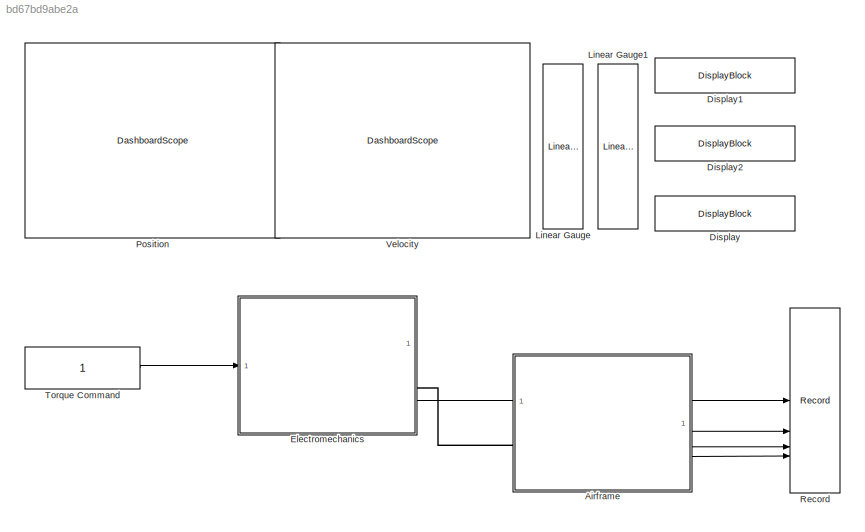
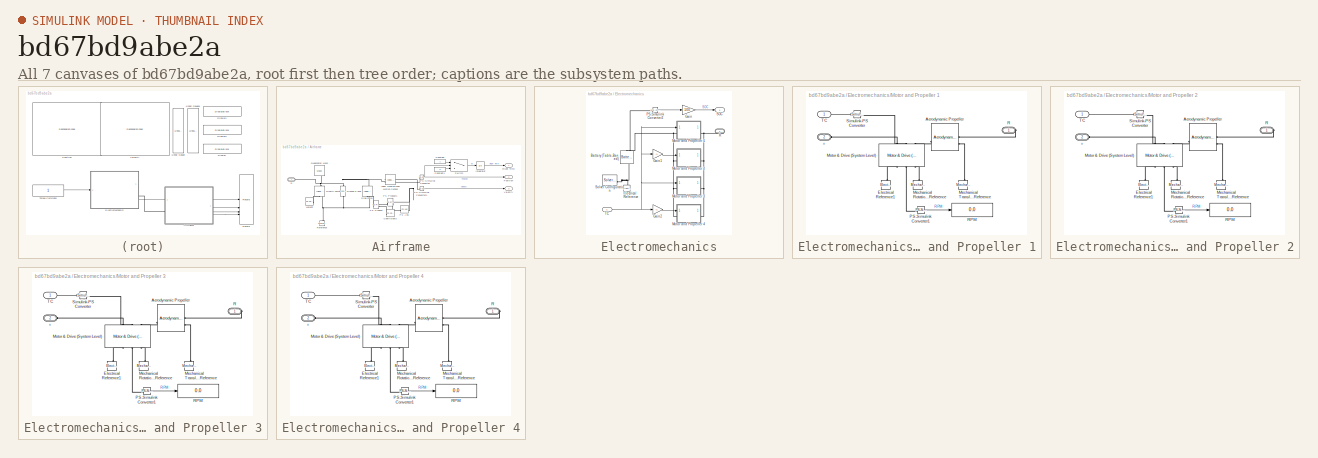
[diagram: thumbnail index - all 7 canvases of the model, root first then tree order]
MODEL slx_bd67bd9abe2a
KIND model
CONFIG AbsTol = auto
CONFIG EnableMultiTasking = off
CONFIG FixedStep = auto
CONFIG MaxStep = auto
CONFIG MinStep = auto
CONFIG RelTol = 1e-3
CONFIG SampleTimeConstraint = Unconstrained
CONFIG SolverName = VariableStepAuto
CONFIG StartTime = 0.0
CONFIG StopTime = 120
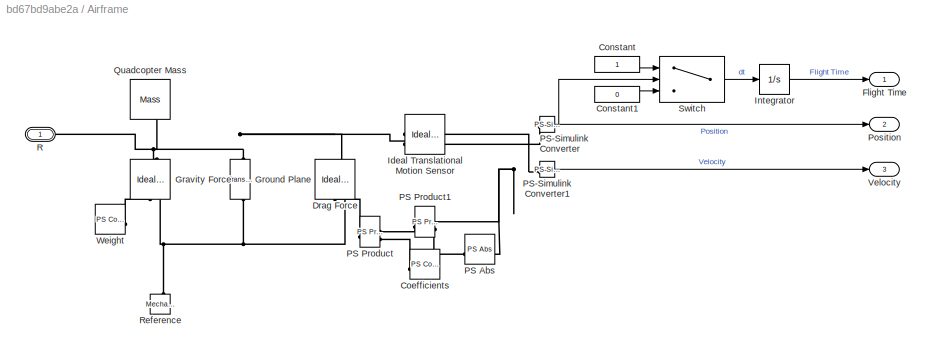
BLOCK [SubSystem] Airframe
BLOCK [Reference] Airframe/Coefficients  REF=fl_lib/Physical Signals/Sources/PS Constant
  SourceBlock = fl_lib/Physical Signals/Sources/PS Constant
  SourceType = PS Constant
BLOCK [Constant] Airframe/Constant
BLOCK [Constant] Airframe/Constant1
  Value = 0
BLOCK [Reference] Airframe/Drag Force  REF=fl_lib/Mechanical/Mechanical Sources/Ideal Force Source
  NameLocation = right
  SourceBlock = fl_lib/Mechanical/Mechanical Sources/Ideal Force Source
  SourceType = Ideal Force Source
BLOCK [Outport] Airframe/Flight Time
BLOCK [Reference] Airframe/Gravity Force  REF=fl_lib/Mechanical/Mechanical Sources/Ideal Force Source
  NameLocation = right
  SourceBlock = fl_lib/Mechanical/Mechanical Sources/Ideal Force Source
  SourceType = Ideal Force Source
BLOCK [Reference] Airframe/Ground Plane  REF=fl_lib/Mechanical/Translational
Elements/Translational Hard
Stop
  NameLocation = right
  SourceBlock = fl_lib/Mechanical/Translational\nElements/Translational Hard\nStop
  SourceType = Translational Hard\nStop
BLOCK [Reference] Airframe/Ideal Translational Motion Sensor  REF=fl_lib/Mechanical/Mechanical Sensors/Ideal Translational
Motion Sensor
  NameLocation = top
  SourceBlock = fl_lib/Mechanical/Mechanical Sensors/Ideal Translational\nMotion Sensor
  SourceType = Ideal Translational\nMotion Sensor
BLOCK [Integrator] Airframe/Integrator
BLOCK [Reference] Airframe/PS Abs  REF=fl_lib/Physical Signals/Nonlinear Operators/PS Abs
  SourceBlock = fl_lib/Physical Signals/Nonlinear Operators/PS Abs
  SourceType = PS Abs
BLOCK [Reference] Airframe/PS Product  REF=fl_lib/Physical Signals/Functions/PS Product
  SourceBlock = fl_lib/Physical Signals/Functions/PS Product
  SourceType = PS Product
BLOCK [Reference] Airframe/PS Product1  REF=fl_lib/Physical Signals/Functions/PS Product
  SourceBlock = fl_lib/Physical Signals/Functions/PS Product
  SourceType = PS Product
BLOCK [Reference] Airframe/PS-Simulink Converter  REF=nesl_utility/PS-Simulink
Converter
  SourceBlock = nesl_utility/PS-Simulink\nConverter
  SourceType = PS-Simulink\nConverter
BLOCK [Reference] Airframe/PS-Simulink Converter1  REF=nesl_utility/PS-Simulink
Converter
  SourceBlock = nesl_utility/PS-Simulink\nConverter
  SourceType = PS-Simulink\nConverter
BLOCK [Outport] Airframe/Position
  Port = 2
BLOCK [Reference] Airframe/Quadcopter Mass  REF=fl_lib/Mechanical/Translational
Elements/Mass
  NameLocation = left
  SourceBlock = fl_lib/Mechanical/Translational\nElements/Mass
  SourceType = Mass
BLOCK [PMIOPort] Airframe/R
  Side = Left
BLOCK [Reference] Airframe/Reference  REF=fl_lib/Mechanical/Translational
Elements/Mechanical
Translational
Reference
  NameLocation = right
  SourceBlock = fl_lib/Mechanical/Translational\nElements/Mechanical\nTranslational\nReference
  SourceType = Mechanical\nTranslational\nReference
BLOCK [Switch] Airframe/Switch
  Criteria = u2 > Threshold
  InputSameDT = off
  SaturateOnIntegerOverflow = off
  Threshold = 0.01
BLOCK [Outport] Airframe/Velocity
  Port = 3
BLOCK [Reference] Airframe/Weight  REF=fl_lib/Physical Signals/Sources/PS Constant
  SourceBlock = fl_lib/Physical Signals/Sources/PS Constant
  SourceType = PS Constant
BLOCK [DisplayBlock] Display
  Transparency = 1
BLOCK [DisplayBlock] Display1
  Transparency = 1
BLOCK [DisplayBlock] Display2
  Transparency = 1
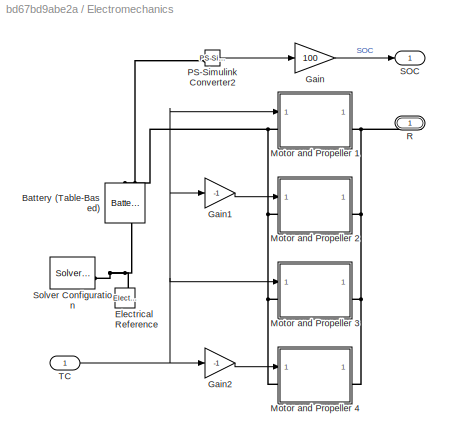
BLOCK [SubSystem] Electromechanics
BLOCK [Reference] Electromechanics/Battery (Table-Based)  REF=batteryecm_lib/Battery
(Table-Based)
  AttributesFormatString = Panasonic:\nNCA593446
  NameLocation = left
  SourceBlock = batteryecm_lib/Battery\n(Table-Based)
  SourceType = Battery\n(Table-Based)
  Tag = {'toolbox/physmod/battery/shared_library/m/batteryecm_lib_parts';'Battery__Table_Based_/Panasonic/NCA593446.xml'}
BLOCK [Reference] Electromechanics/Electrical Reference  REF=fl_lib/Electrical/Electrical Elements/Electrical Reference
  NameLocation = right
  SourceBlock = fl_lib/Electrical/Electrical Elements/Electrical Reference
  SourceType = Electrical Reference
BLOCK [Gain] Electromechanics/Gain
  Gain = 100
BLOCK [Gain] Electromechanics/Gain1
  Gain = -1
BLOCK [Gain] Electromechanics/Gain2
  Gain = -1
BLOCK [SubSystem] Electromechanics/Motor and Propeller 1
BLOCK [PMIOPort] Electromechanics/Motor and Propeller 1/+
  Port = 2
  Side = Left
BLOCK [Reference] Electromechanics/Motor and Propeller 1/Aerodynamic Propeller  REF=sdl_lib/Engines & Motors/Aerodynamic
Propeller
  SourceBlock = sdl_lib/Engines & Motors/Aerodynamic\nPropeller
  SourceType = Aerodynamic\nPropeller
BLOCK [Reference] Electromechanics/Motor and Propeller 1/Electrical Reference1  REF=fl_lib/Electrical/Electrical Elements/Electrical Reference
  NameLocation = right
  SourceBlock = fl_lib/Electrical/Electrical Elements/Electrical Reference
  SourceType = Electrical Reference
BLOCK [Reference] Electromechanics/Motor and Propeller 1/Mechanical Rotational Reference  REF=fl_lib/Mechanical/Rotational Elements/Mechanical
Rotational Reference
  NameLocation = right
  SourceBlock = fl_lib/Mechanical/Rotational Elements/Mechanical\nRotational Reference
  SourceType = Mechanical\nRotational Reference
BLOCK [Reference] Electromechanics/Motor and Propeller 1/Mechanical Translational Reference  REF=fl_lib/Mechanical/Translational
Elements/Mechanical
Translational
Reference
  NameLocation = right
  SourceBlock = fl_lib/Mechanical/Translational\nElements/Mechanical\nTranslational\nReference
  SourceType = Mechanical\nTranslational\nReference
BLOCK [Reference] Electromechanics/Motor and Propeller 1/Motor & Drive (System Level)  REF=ee_lib/Electromechanical/Motor & Drive
(System Level)
  NameLocation = right
  SourceBlock = ee_lib/Electromechanical/Motor & Drive\n(System Level)
  SourceType = Motor & Drive\n(System Level)
BLOCK [Reference] Electromechanics/Motor and Propeller 1/PS-Simulink Converter1  REF=nesl_utility/PS-Simulink
Converter
  SourceBlock = nesl_utility/PS-Simulink\nConverter
  SourceType = PS-Simulink\nConverter
BLOCK [PMIOPort] Electromechanics/Motor and Propeller 1/R
  Side = Right
BLOCK [Display] Electromechanics/Motor and Propeller 1/RPM
  Decimation = 1
BLOCK [Reference] Electromechanics/Motor and Propeller 1/Simulink-PS Converter  REF=nesl_utility/Simulink-PS
Converter
  SourceBlock = nesl_utility/Simulink-PS\nConverter
  SourceType = Simulink-PS\nConverter
BLOCK [Inport] Electromechanics/Motor and Propeller 1/TC
BLOCK [SubSystem] Electromechanics/Motor and Propeller 2
BLOCK [PMIOPort] Electromechanics/Motor and Propeller 2/+
  Port = 2
  Side = Left
BLOCK [Reference] Electromechanics/Motor and Propeller 2/Aerodynamic Propeller  REF=sdl_lib/Engines & Motors/Aerodynamic
Propeller
  SourceBlock = sdl_lib/Engines & Motors/Aerodynamic\nPropeller
  SourceType = Aerodynamic\nPropeller
BLOCK [Reference] Electromechanics/Motor and Propeller 2/Electrical Reference1  REF=fl_lib/Electrical/Electrical Elements/Electrical Reference
  NameLocation = right
  SourceBlock = fl_lib/Electrical/Electrical Elements/Electrical Reference
  SourceType = Electrical Reference
BLOCK [Reference] Electromechanics/Motor and Propeller 2/Mechanical Rotational Reference  REF=fl_lib/Mechanical/Rotational Elements/Mechanical
Rotational Reference
  NameLocation = right
  SourceBlock = fl_lib/Mechanical/Rotational Elements/Mechanical\nRotational Reference
  SourceType = Mechanical\nRotational Reference
BLOCK [Reference] Electromechanics/Motor and Propeller 2/Mechanical Translational Reference  REF=fl_lib/Mechanical/Translational
Elements/Mechanical
Translational
Reference
  NameLocation = right
  SourceBlock = fl_lib/Mechanical/Translational\nElements/Mechanical\nTranslational\nReference
  SourceType = Mechanical\nTranslational\nReference
BLOCK [Reference] Electromechanics/Motor and Propeller 2/Motor & Drive (System Level)  REF=ee_lib/Electromechanical/Motor & Drive
(System Level)
  NameLocation = right
  SourceBlock = ee_lib/Electromechanical/Motor & Drive\n(System Level)
  SourceType = Motor & Drive\n(System Level)
BLOCK [Reference] Electromechanics/Motor and Propeller 2/PS-Simulink Converter1  REF=nesl_utility/PS-Simulink
Converter
  SourceBlock = nesl_utility/PS-Simulink\nConverter
  SourceType = PS-Simulink\nConverter
BLOCK [PMIOPort] Electromechanics/Motor and Propeller 2/R
  Side = Right
BLOCK [Display] Electromechanics/Motor and Propeller 2/RPM
  Decimation = 1
BLOCK [Reference] Electromechanics/Motor and Propeller 2/Simulink-PS Converter  REF=nesl_utility/Simulink-PS
Converter
  SourceBlock = nesl_utility/Simulink-PS\nConverter
  SourceType = Simulink-PS\nConverter
BLOCK [Inport] Electromechanics/Motor and Propeller 2/TC
BLOCK [SubSystem] Electromechanics/Motor and Propeller 3
BLOCK [PMIOPort] Electromechanics/Motor and Propeller 3/+
  Port = 2
  Side = Left
BLOCK [Reference] Electromechanics/Motor and Propeller 3/Aerodynamic Propeller  REF=sdl_lib/Engines & Motors/Aerodynamic
Propeller
  SourceBlock = sdl_lib/Engines & Motors/Aerodynamic\nPropeller
  SourceType = Aerodynamic\nPropeller
BLOCK [Reference] Electromechanics/Motor and Propeller 3/Electrical Reference1  REF=fl_lib/Electrical/Electrical Elements/Electrical Reference
  NameLocation = right
  SourceBlock = fl_lib/Electrical/Electrical Elements/Electrical Reference
  SourceType = Electrical Reference
BLOCK [Reference] Electromechanics/Motor and Propeller 3/Mechanical Rotational Reference  REF=fl_lib/Mechanical/Rotational Elements/Mechanical
Rotational Reference
  NameLocation = right
  SourceBlock = fl_lib/Mechanical/Rotational Elements/Mechanical\nRotational Reference
  SourceType = Mechanical\nRotational Reference
BLOCK [Reference] Electromechanics/Motor and Propeller 3/Mechanical Translational Reference  REF=fl_lib/Mechanical/Translational
Elements/Mechanical
Translational
Reference
  NameLocation = right
  SourceBlock = fl_lib/Mechanical/Translational\nElements/Mechanical\nTranslational\nReference
  SourceType = Mechanical\nTranslational\nReference
BLOCK [Reference] Electromechanics/Motor and Propeller 3/Motor & Drive (System Level)  REF=ee_lib/Electromechanical/Motor & Drive
(System Level)
  NameLocation = right
  SourceBlock = ee_lib/Electromechanical/Motor & Drive\n(System Level)
  SourceType = Motor & Drive\n(System Level)
BLOCK [Reference] Electromechanics/Motor and Propeller 3/PS-Simulink Converter1  REF=nesl_utility/PS-Simulink
Converter
  SourceBlock = nesl_utility/PS-Simulink\nConverter
  SourceType = PS-Simulink\nConverter
BLOCK [PMIOPort] Electromechanics/Motor and Propeller 3/R
  Side = Right
BLOCK [Display] Electromechanics/Motor and Propeller 3/RPM
  Decimation = 1
BLOCK [Reference] Electromechanics/Motor and Propeller 3/Simulink-PS Converter  REF=nesl_utility/Simulink-PS
Converter
  SourceBlock = nesl_utility/Simulink-PS\nConverter
  SourceType = Simulink-PS\nConverter
BLOCK [Inport] Electromechanics/Motor and Propeller 3/TC
BLOCK [SubSystem] Electromechanics/Motor and Propeller 4
BLOCK [PMIOPort] Electromechanics/Motor and Propeller 4/+
  Port = 2
  Side = Left
BLOCK [Reference] Electromechanics/Motor and Propeller 4/Aerodynamic Propeller  REF=sdl_lib/Engines & Motors/Aerodynamic
Propeller
  SourceBlock = sdl_lib/Engines & Motors/Aerodynamic\nPropeller
  SourceType = Aerodynamic\nPropeller
BLOCK [Reference] Electromechanics/Motor and Propeller 4/Electrical Reference1  REF=fl_lib/Electrical/Electrical Elements/Electrical Reference
  NameLocation = right
  SourceBlock = fl_lib/Electrical/Electrical Elements/Electrical Reference
  SourceType = Electrical Reference
BLOCK [Reference] Electromechanics/Motor and Propeller 4/Mechanical Rotational Reference  REF=fl_lib/Mechanical/Rotational Elements/Mechanical
Rotational Reference
  NameLocation = right
  SourceBlock = fl_lib/Mechanical/Rotational Elements/Mechanical\nRotational Reference
  SourceType = Mechanical\nRotational Reference
BLOCK [Reference] Electromechanics/Motor and Propeller 4/Mechanical Translational Reference  REF=fl_lib/Mechanical/Translational
Elements/Mechanical
Translational
Reference
  NameLocation = right
  SourceBlock = fl_lib/Mechanical/Translational\nElements/Mechanical\nTranslational\nReference
  SourceType = Mechanical\nTranslational\nReference
BLOCK [Reference] Electromechanics/Motor and Propeller 4/Motor & Drive (System Level)  REF=ee_lib/Electromechanical/Motor & Drive
(System Level)
  NameLocation = right
  SourceBlock = ee_lib/Electromechanical/Motor & Drive\n(System Level)
  SourceType = Motor & Drive\n(System Level)
BLOCK [Reference] Electromechanics/Motor and Propeller 4/PS-Simulink Converter1  REF=nesl_utility/PS-Simulink
Converter
  SourceBlock = nesl_utility/PS-Simulink\nConverter
  SourceType = PS-Simulink\nConverter
BLOCK [PMIOPort] Electromechanics/Motor and Propeller 4/R
  Side = Right
BLOCK [Display] Electromechanics/Motor and Propeller 4/RPM
  Decimation = 1
BLOCK [Reference] Electromechanics/Motor and Propeller 4/Simulink-PS Converter  REF=nesl_utility/Simulink-PS
Converter
  SourceBlock = nesl_utility/Simulink-PS\nConverter
  SourceType = Simulink-PS\nConverter
BLOCK [Inport] Electromechanics/Motor and Propeller 4/TC
BLOCK [Reference] Electromechanics/PS-Simulink Converter2  REF=nesl_utility/PS-Simulink
Converter
  SourceBlock = nesl_utility/PS-Simulink\nConverter
  SourceType = PS-Simulink\nConverter
BLOCK [PMIOPort] Electromechanics/R
  Side = Right
BLOCK [Outport] Electromechanics/SOC
BLOCK [Reference] Electromechanics/Solver Configuration  REF=nesl_utility/Solver
Configuration
  SourceBlock = nesl_utility/Solver\nConfiguration
  SourceType = Solver\nConfiguration
BLOCK [Inport] Electromechanics/TC
BLOCK [LinearGaugeBlock] Linear Gauge
  NameLocation = left
  ScaleMax = 40
  ScaleMin = -60
BLOCK [LinearGaugeBlock] Linear Gauge1
  NameLocation = left
BLOCK [DashboardScope] Position 
  ScaleAtStop = off
  TimeSpan = 120
  UpdateMode = Scroll
  Ymax = 300
  Ymin = -20
BLOCK [Record] Record
  FileSettingsInternal = {"entries":[{"content":{"excelSettings":{"content":{},"type":"Streamout.ExcelSettings"}},"type":"Streamout.FileSettingStorage","uuid":""}],"packageUris":["http:\/\/schema.mathworks.com\/mf0\/streamout_blocks\/R2020a"],"version":"1.0"}
  SignalsInternal = {"entries":[{"content":{"signals":[{"content":{"blockPath":[],"dimensions":[1,1],"domain":"","lineColor":"#d95319","plots":[1],"port":1,"signalID":268,"signalName":"SOC"},"type":"RecordBlkView.Signal","uuid":""},{"content":{"blockPath":[],"dimensions":[1,1],"domain":"","lineColor":"#edb120","plots":[1],"port":2,"signalID":271,"signalName":"Flight Time"},"type":"RecordBlkView.Signal","uuid":""},{"c...<+506ch>
  VisualizationBindings = {"sparklinesplugin":{"info":[{"bindingParametersList":[],"subplotID":1}]}}
BLOCK [Constant] Torque Command
BLOCK [DashboardScope] Velocity
  ScaleAtStop = off
  TimeSpan = 120
  UpdateMode = Scroll
  Ymax = 30
  Ymin = -60
LINE Airframe/Constant1:1 -> Airframe/Switch:3
LINE Airframe/Constant:1 -> Airframe/Switch:1
LINE Airframe/Integrator:1 -> Airframe/Flight Time:1
LINE Airframe/PS-Simulink Converter1:1 -> Airframe/Velocity:1
NET Airframe/PS-Simulink Converter:1 -> Airframe/Position:1, Airframe/Switch:2
LINE Airframe/Switch:1 -> Airframe/Integrator:1
LINE Airframe:1 -> Record:2
LINE Airframe:2 -> Record:3
LINE Airframe:3 -> Record:4
LINE Electromechanics/Gain1:1 -> Electromechanics/Motor and Propeller 2:1
LINE Electromechanics/Gain2:1 -> Electromechanics/Motor and Propeller 4:1
LINE Electromechanics/Gain:1 -> Electromechanics/SOC:1
LINE Electromechanics/Motor and Propeller 1/PS-Simulink Converter1:1 -> Electromechanics/Motor and Propeller 1/RPM:1
LINE Electromechanics/Motor and Propeller 1/TC:1 -> Electromechanics/Motor and Propeller 1/Simulink-PS Converter:1
LINE Electromechanics/Motor and Propeller 2/PS-Simulink Converter1:1 -> Electromechanics/Motor and Propeller 2/RPM:1
LINE Electromechanics/Motor and Propeller 2/TC:1 -> Electromechanics/Motor and Propeller 2/Simulink-PS Converter:1
LINE Electromechanics/Motor and Propeller 3/PS-Simulink Converter1:1 -> Electromechanics/Motor and Propeller 3/RPM:1
LINE Electromechanics/Motor and Propeller 3/TC:1 -> Electromechanics/Motor and Propeller 3/Simulink-PS Converter:1
LINE Electromechanics/Motor and Propeller 4/PS-Simulink Converter1:1 -> Electromechanics/Motor and Propeller 4/RPM:1
LINE Electromechanics/Motor and Propeller 4/TC:1 -> Electromechanics/Motor and Propeller 4/Simulink-PS Converter:1
LINE Electromechanics/PS-Simulink Converter2:1 -> Electromechanics/Gain:1
NET Electromechanics/TC:1 -> Electromechanics/Gain1:1, Electromechanics/Gain2:1, Electromechanics/Motor and Propeller 1:1, Electromechanics/Motor and Propeller 3:1
LINE Electromechanics:1 -> Record:1
LINE Torque Command:1 -> Electromechanics:1
PLINE Airframe/Coefficients:RConn1 -- Airframe/PS Product:LConn2
PNET net1: Airframe/Drag Force:LConn1 -- Airframe/Gravity Force:LConn1 -- Airframe/Ground Plane:LConn1 -- Airframe/Ideal Translational Motion Sensor:LConn1 -- Airframe/Quadcopter Mass:LConn1 -- Airframe/R:RConn1
PLINE Airframe/Drag Force:RConn1 -- Airframe/PS Product:RConn1
PNET net2: Airframe/Drag Force:RConn2 -- Airframe/Gravity Force:RConn2 -- Airframe/Ground Plane:RConn1 -- Airframe/Reference:LConn1
PLINE Airframe/Gravity Force:RConn1 -- Airframe/Weight:RConn1
PNET net3: Airframe/Ideal Translational Motion Sensor:RConn1 -- Airframe/PS Abs:LConn1 -- Airframe/PS Product1:LConn1 -- Airframe/PS-Simulink Converter1:LConn1
PLINE Airframe/Ideal Translational Motion Sensor:RConn2 -- Airframe/PS-Simulink Converter:LConn1
PLINE Airframe/PS Abs:RConn1 -- Airframe/PS Product1:LConn2
PLINE Airframe/PS Product1:RConn1 -- Airframe/PS Product:LConn1
PLINE Airframe:LConn1 -- Electromechanics:RConn1
PNET net4: Electromechanics/Battery (Table-Based):LConn1 -- Electromechanics/Motor and Propeller 1:LConn1 -- Electromechanics/Motor and Propeller 2:LConn1 -- Electromechanics/Motor and Propeller 3:LConn1 -- Electromechanics/Motor and Propeller 4:LConn1
PLINE Electromechanics/Battery (Table-Based):LConn2 -- Electromechanics/PS-Simulink Converter2:LConn1
PNET net5: Electromechanics/Battery (Table-Based):RConn1 -- Electromechanics/Electrical Reference:LConn1 -- Electromechanics/Solver Configuration:RConn1
PLINE Electromechanics/Motor and Propeller 1/+:RConn1 -- Electromechanics/Motor and Propeller 1/Motor & Drive (System Level):LConn1
PLINE Electromechanics/Motor and Propeller 1/Aerodynamic Propeller:LConn1 -- Electromechanics/Motor and Propeller 1/Motor & Drive (System Level):LConn3
PLINE Electromechanics/Motor and Propeller 1/Aerodynamic Propeller:RConn1 -- Electromechanics/Motor and Propeller 1/R:RConn1
PLINE Electromechanics/Motor and Propeller 1/Aerodynamic Propeller:RConn2 -- Electromechanics/Motor and Propeller 1/Mechanical Translational Reference:LConn1
PLINE Electromechanics/Motor and Propeller 1/Electrical Reference1:LConn1 -- Electromechanics/Motor and Propeller 1/Motor & Drive (System Level):RConn1
PLINE Electromechanics/Motor and Propeller 1/Mechanical Rotational Reference:LConn1 -- Electromechanics/Motor and Propeller 1/Motor & Drive (System Level):RConn3
PLINE Electromechanics/Motor and Propeller 1/Motor & Drive (System Level):LConn2 -- Electromechanics/Motor and Propeller 1/Simulink-PS Converter:RConn1
PLINE Electromechanics/Motor and Propeller 1/Motor & Drive (System Level):RConn2 -- Electromechanics/Motor and Propeller 1/PS-Simulink Converter1:LConn1
PNET net6: Electromechanics/Motor and Propeller 1:RConn1 -- Electromechanics/Motor and Propeller 2:RConn1 -- Electromechanics/Motor and Propeller 3:RConn1 -- Electromechanics/Motor and Propeller 4:RConn1 -- Electromechanics/R:RConn1
PLINE Electromechanics/Motor and Propeller 2/+:RConn1 -- Electromechanics/Motor and Propeller 2/Motor & Drive (System Level):LConn1
PLINE Electromechanics/Motor and Propeller 2/Aerodynamic Propeller:LConn1 -- Electromechanics/Motor and Propeller 2/Motor & Drive (System Level):LConn3
PLINE Electromechanics/Motor and Propeller 2/Aerodynamic Propeller:RConn1 -- Electromechanics/Motor and Propeller 2/R:RConn1
PLINE Electromechanics/Motor and Propeller 2/Aerodynamic Propeller:RConn2 -- Electromechanics/Motor and Propeller 2/Mechanical Translational Reference:LConn1
PLINE Electromechanics/Motor and Propeller 2/Electrical Reference1:LConn1 -- Electromechanics/Motor and Propeller 2/Motor & Drive (System Level):RConn1
PLINE Electromechanics/Motor and Propeller 2/Mechanical Rotational Reference:LConn1 -- Electromechanics/Motor and Propeller 2/Motor & Drive (System Level):RConn3
PLINE Electromechanics/Motor and Propeller 2/Motor & Drive (System Level):LConn2 -- Electromechanics/Motor and Propeller 2/Simulink-PS Converter:RConn1
PLINE Electromechanics/Motor and Propeller 2/Motor & Drive (System Level):RConn2 -- Electromechanics/Motor and Propeller 2/PS-Simulink Converter1:LConn1
PLINE Electromechanics/Motor and Propeller 3/+:RConn1 -- Electromechanics/Motor and Propeller 3/Motor & Drive (System Level):LConn1
PLINE Electromechanics/Motor and Propeller 3/Aerodynamic Propeller:LConn1 -- Electromechanics/Motor and Propeller 3/Motor & Drive (System Level):LConn3
PLINE Electromechanics/Motor and Propeller 3/Aerodynamic Propeller:RConn1 -- Electromechanics/Motor and Propeller 3/R:RConn1
PLINE Electromechanics/Motor and Propeller 3/Aerodynamic Propeller:RConn2 -- Electromechanics/Motor and Propeller 3/Mechanical Translational Reference:LConn1
PLINE Electromechanics/Motor and Propeller 3/Electrical Reference1:LConn1 -- Electromechanics/Motor and Propeller 3/Motor & Drive (System Level):RConn1
PLINE Electromechanics/Motor and Propeller 3/Mechanical Rotational Reference:LConn1 -- Electromechanics/Motor and Propeller 3/Motor & Drive (System Level):RConn3
PLINE Electromechanics/Motor and Propeller 3/Motor & Drive (System Level):LConn2 -- Electromechanics/Motor and Propeller 3/Simulink-PS Converter:RConn1
PLINE Electromechanics/Motor and Propeller 3/Motor & Drive (System Level):RConn2 -- Electromechanics/Motor and Propeller 3/PS-Simulink Converter1:LConn1
PLINE Electromechanics/Motor and Propeller 4/+:RConn1 -- Electromechanics/Motor and Propeller 4/Motor & Drive (System Level):LConn1
PLINE Electromechanics/Motor and Propeller 4/Aerodynamic Propeller:LConn1 -- Electromechanics/Motor and Propeller 4/Motor & Drive (System Level):LConn3
PLINE Electromechanics/Motor and Propeller 4/Aerodynamic Propeller:RConn1 -- Electromechanics/Motor and Propeller 4/R:RConn1
PLINE Electromechanics/Motor and Propeller 4/Aerodynamic Propeller:RConn2 -- Electromechanics/Motor and Propeller 4/Mechanical Translational Reference:LConn1
PLINE Electromechanics/Motor and Propeller 4/Electrical Reference1:LConn1 -- Electromechanics/Motor and Propeller 4/Motor & Drive (System Level):RConn1
PLINE Electromechanics/Motor and Propeller 4/Mechanical Rotational Reference:LConn1 -- Electromechanics/Motor and Propeller 4/Motor & Drive (System Level):RConn3
PLINE Electromechanics/Motor and Propeller 4/Motor & Drive (System Level):LConn2 -- Electromechanics/Motor and Propeller 4/Simulink-PS Converter:RConn1
PLINE Electromechanics/Motor and Propeller 4/Motor & Drive (System Level):RConn2 -- Electromechanics/Motor and Propeller 4/PS-Simulink Converter1:LConn1
note: NET lines group one-source signal fan-out (src -> all destinations, sorted); 1:1 wires keep LINE; PNET lines group multi-terminal physical nets as a canonical sorted terminal list (undirected conserving connections); 2-terminal nets keep the pairwise PLINE form
